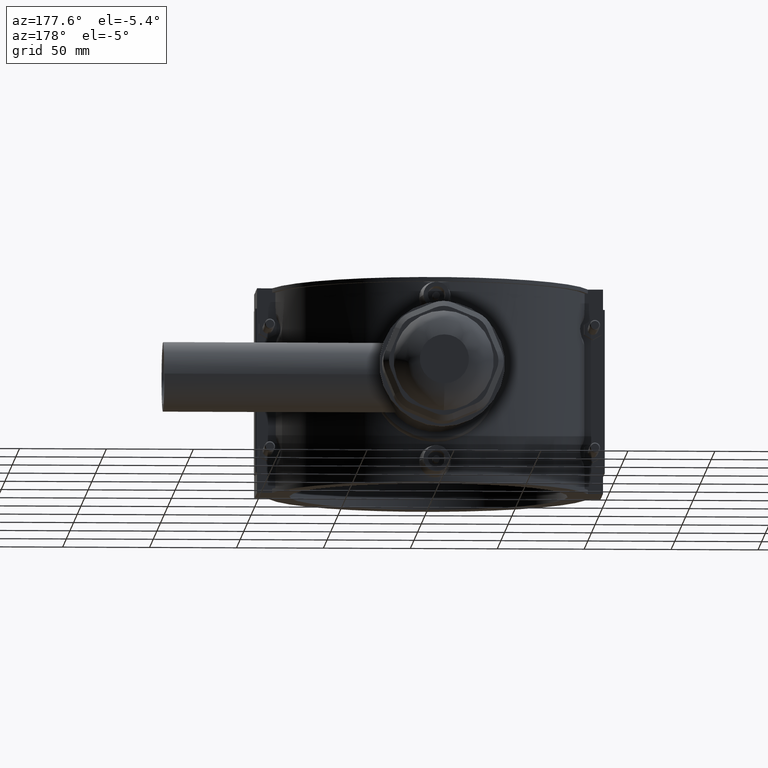
[diagram: clean part render]
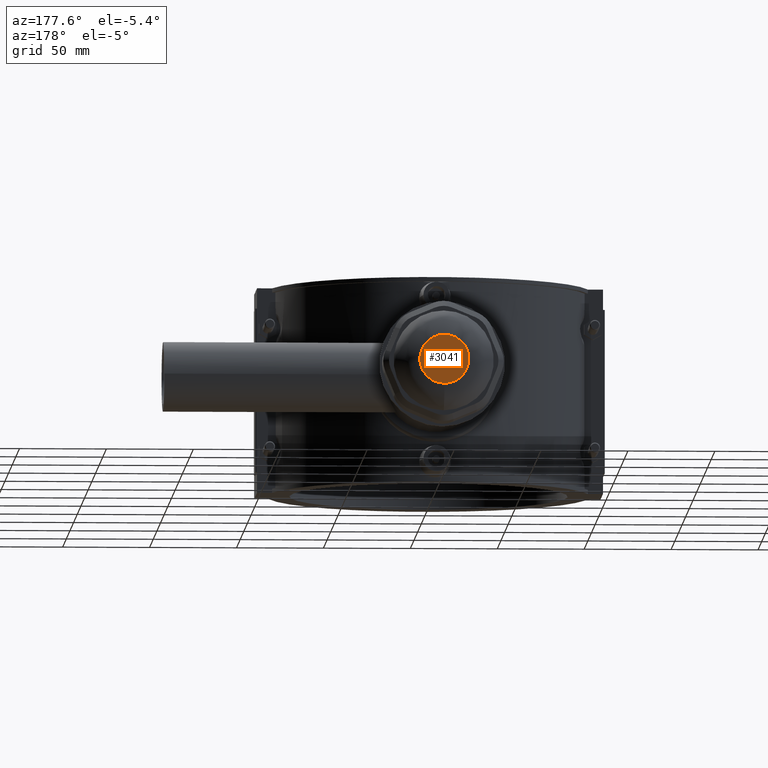
[diagram: same view with one face highlighted and labeled with its STEP entity id]
A machine part, auxiliary view. The second image highlights one B-rep face of the part: STEP entity #3041.
In plain terms, the highlighted planar face has unit normal (0, 1, 0).
Its self-contained STEP definition (entity closure, byte-faithful):
#613=PLANE('',#3248);
#732=CIRCLE('',#3247,14.1097174976109);
#894=FACE_OUTER_BOUND('',#1081,.T.);
#1081=EDGE_LOOP('',(#2200));
#1387=VERTEX_POINT('',#4724);
#1706=EDGE_CURVE('',#1387,#1387,#732,.T.);
#2200=ORIENTED_EDGE('',*,*,#1706,.F.);
#3041=ADVANCED_FACE('',(#894),#613,.T.);
#3247=AXIS2_PLACEMENT_3D('',#4725,#3627,#3628);
#3248=AXIS2_PLACEMENT_3D('',#4729,#3629,#3630);
#3627=DIRECTION('center_axis',(0.,-1.,-3.06161699786838E-16));
#3628=DIRECTION('ref_axis',(-6.12323399573677E-17,-3.14739972593539E-16,
1.));
#3629=DIRECTION('center_axis',(0.,1.,3.06161699786838E-16));
#3630=DIRECTION('ref_axis',(0.,0.,1.));
#4724=CARTESIAN_POINT('',(2.59191305554839E-15,218.,-14.1097174976108));
#4725=CARTESIAN_POINT('Origin',(0.,218.,4.22503145705837E-14));
#4729=CARTESIAN_POINT('Origin',(0.,218.,4.22503145705837E-14));